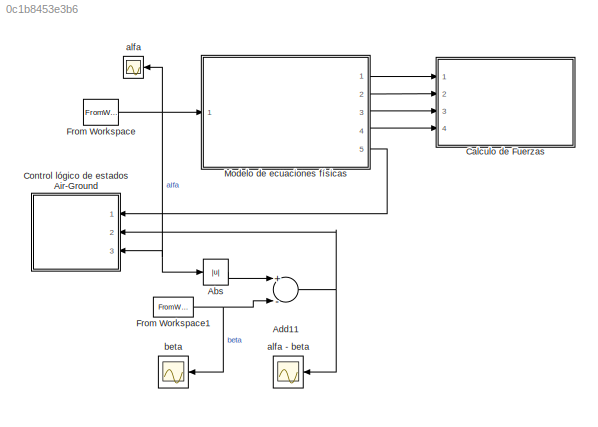
MODEL slx_0c1b8453e3b6
KIND model
CONFIG AbsTol = auto
CONFIG EnableMultiTasking = off
CONFIG FixedStep = auto
CONFIG MaxStep = auto
CONFIG MinStep = auto
CONFIG RelTol = 1e-1
CONFIG SampleTimeConstraint = Unconstrained
CONFIG Solver = ode4
CONFIG SolverName = ode4
CONFIG StartTime = 0.0
CONFIG StopTime = ta
BLOCK [Abs] Abs
  SaturateOnIntegerOverflow = off
BLOCK [Sum] Add11
  InputSameDT = off
  Inputs = +-
  OutDataTypeStr = Inherit: Inherit via internal rule
  Ports = [2, 1]
  SaturateOnIntegerOverflow = off
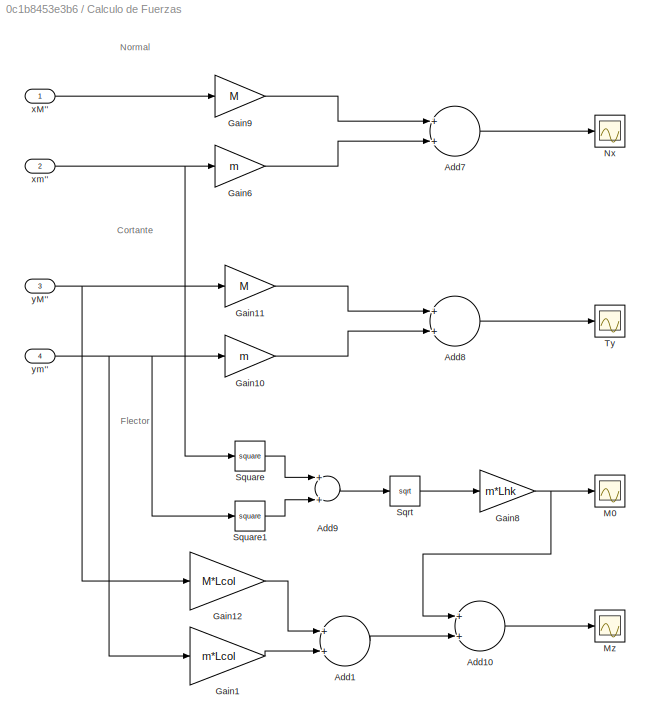
BLOCK [SubSystem] Calculo de Fuerzas
  Ports = [4]
  RequestExecContextInheritance = off
BLOCK [Sum] Calculo de Fuerzas/Add1
  InputSameDT = off
  OutDataTypeStr = Inherit: Inherit via internal rule
  Ports = [2, 1]
  SaturateOnIntegerOverflow = off
BLOCK [Sum] Calculo de Fuerzas/Add10
  InputSameDT = off
  OutDataTypeStr = Inherit: Inherit via internal rule
  Ports = [2, 1]
  SaturateOnIntegerOverflow = off
BLOCK [Sum] Calculo de Fuerzas/Add7
  InputSameDT = off
  OutDataTypeStr = Inherit: Inherit via internal rule
  Ports = [2, 1]
  SaturateOnIntegerOverflow = off
BLOCK [Sum] Calculo de Fuerzas/Add8
  InputSameDT = off
  OutDataTypeStr = Inherit: Inherit via internal rule
  Ports = [2, 1]
  SaturateOnIntegerOverflow = off
BLOCK [Sum] Calculo de Fuerzas/Add9
  InputSameDT = off
  OutDataTypeStr = Inherit: Inherit via internal rule
  Ports = [2, 1]
  SaturateOnIntegerOverflow = off
BLOCK [Gain] Calculo de Fuerzas/Gain1
  Gain = m*Lcol
  OutDataTypeStr = Inherit: Inherit via internal rule
  ParamDataTypeStr = Inherit: Inherit via internal rule
  SaturateOnIntegerOverflow = off
BLOCK [Gain] Calculo de Fuerzas/Gain10
  Gain = m
  OutDataTypeStr = Inherit: Inherit via internal rule
  ParamDataTypeStr = Inherit: Inherit via internal rule
  SaturateOnIntegerOverflow = off
BLOCK [Gain] Calculo de Fuerzas/Gain11
  Gain = M
  OutDataTypeStr = Inherit: Inherit via internal rule
  ParamDataTypeStr = Inherit: Inherit via internal rule
  SaturateOnIntegerOverflow = off
BLOCK [Gain] Calculo de Fuerzas/Gain12
  Gain = M*Lcol
  OutDataTypeStr = Inherit: Inherit via internal rule
  ParamDataTypeStr = Inherit: Inherit via internal rule
  SaturateOnIntegerOverflow = off
BLOCK [Gain] Calculo de Fuerzas/Gain6
  Gain = m
  OutDataTypeStr = Inherit: Inherit via internal rule
  ParamDataTypeStr = Inherit: Inherit via internal rule
  SaturateOnIntegerOverflow = off
BLOCK [Gain] Calculo de Fuerzas/Gain8
  Gain = m*Lhk
  OutDataTypeStr = Inherit: Inherit via internal rule
  ParamDataTypeStr = Inherit: Inherit via internal rule
  SaturateOnIntegerOverflow = off
BLOCK [Gain] Calculo de Fuerzas/Gain9
  Gain = M
  OutDataTypeStr = Inherit: Inherit via internal rule
  ParamDataTypeStr = Inherit: Inherit via internal rule
  SaturateOnIntegerOverflow = off
BLOCK [Scope] Calculo de Fuerzas/M0
  Floating = off
  NumInputPorts = 1
  Ports = [1]
  ScopeSpecificationString = Simulink.scopes.TimeScopeBlockCfg('CurrentConfiguration', extmgr.ConfigurationSet(extmgr.Configuration('Core','General UI',true),extmgr.Configuration('Core','Source UI',true),extmgr.Configuration('Sources','WiredSimulink',true,'DataLoggingVariableName','M0','DataLogging',true),extmgr.Configuration('Visuals','Time Domain',true,'SerializedDisplays',{struct('MinYLimReal','7.84642','MaxYLimReal','9.89...<+1469ch>
BLOCK [Scope] Calculo de Fuerzas/Mz
  Floating = off
  NumInputPorts = 1
  Ports = [1]
  ScopeSpecificationString = Simulink.scopes.TimeScopeBlockCfg('CurrentConfiguration', extmgr.ConfigurationSet(extmgr.Configuration('Core','General UI',true),extmgr.Configuration('Core','Source UI',true),extmgr.Configuration('Sources','WiredSimulink',true,'DataLoggingVariableName','Mz','DataLogging',true),extmgr.Configuration('Visuals','Time Domain',true,'SerializedDisplays',{struct('MinYLimReal','-95.15858','MaxYLimReal','-9...<+1480ch>
BLOCK [Scope] Calculo de Fuerzas/Nx
  Floating = off
  NumInputPorts = 1
  Ports = [1]
  ScopeSpecificationString = Simulink.scopes.TimeScopeBlockCfg('CurrentConfiguration', extmgr.ConfigurationSet(extmgr.Configuration('Core','General UI',true),extmgr.Configuration('Core','Source UI',true),extmgr.Configuration('Sources','WiredSimulink',true,'DataLoggingVariableName','Nx','DataLogging',true),extmgr.Configuration('Visuals','Time Domain',true,'SerializedDisplays',{struct('MinYLimReal','-11.64672','MaxYLimReal','1....<+1449ch>
BLOCK [Sqrt] Calculo de Fuerzas/Sqrt
BLOCK [Math] Calculo de Fuerzas/Square
  Operator = square
  Ports = [1, 1]
BLOCK [Math] Calculo de Fuerzas/Square1
  Operator = square
  Ports = [1, 1]
BLOCK [Scope] Calculo de Fuerzas/Ty
  Floating = off
  NumInputPorts = 1
  Ports = [1]
  ScopeSpecificationString = Simulink.scopes.TimeScopeBlockCfg('CurrentConfiguration', extmgr.ConfigurationSet(extmgr.Configuration('Core','General UI',true),extmgr.Configuration('Core','Source UI',true),extmgr.Configuration('Sources','WiredSimulink',true,'DataLoggingVariableName','Ty','DataLogging',true),extmgr.Configuration('Visuals','Time Domain',true,'SerializedDisplays',{struct('MinYLimReal','-180.70757','MaxYLimReal','-...<+1461ch>
BLOCK [Inport] Calculo de Fuerzas/xM''
  IconDisplay = Port number
BLOCK [Inport] Calculo de Fuerzas/xm''
  IconDisplay = Port number
  Port = 2
BLOCK [Inport] Calculo de Fuerzas/yM''
  IconDisplay = Port number
  Port = 3
BLOCK [Inport] Calculo de Fuerzas/ym''
  IconDisplay = Port number
  Port = 4
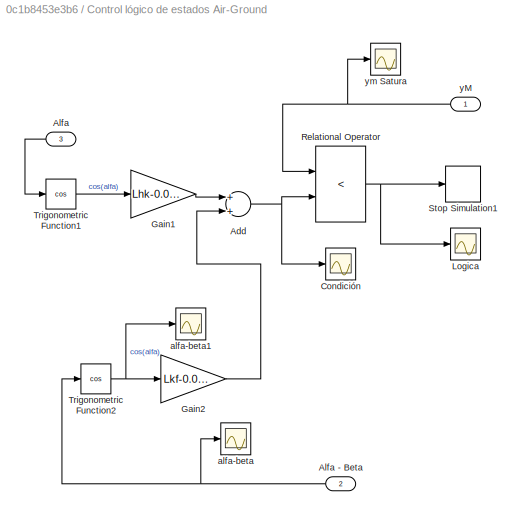
BLOCK [SubSystem] Control lógico de estados Air-Ground
  Ports = [3]
  RequestExecContextInheritance = off
BLOCK [Sum] Control lógico de estados Air-Ground/Add
  InputSameDT = off
  OutDataTypeStr = Inherit: Inherit via internal rule
  Ports = [2, 1]
  SaturateOnIntegerOverflow = off
BLOCK [Inport] Control lógico de estados Air-Ground/Alfa
  IconDisplay = Port number
  Port = 3
BLOCK [Inport] Control lógico de estados Air-Ground/Alfa - Beta
  IconDisplay = Port number
  Port = 2
BLOCK [Scope] Control lógico de estados Air-Ground/Condición
  Floating = off
  NumInputPorts = 1
  Ports = [1]
  ScopeSpecificationString = Simulink.scopes.TimeScopeBlockCfg('CurrentConfiguration', extmgr.ConfigurationSet(extmgr.Configuration('Core','General UI',true),extmgr.Configuration('Core','Source UI',true),extmgr.Configuration('Sources','WiredSimulink',true,'DataLoggingVariableName','condicion','DataLogging',true),extmgr.Configuration('Visuals','Time Domain',true,'SerializedDisplays',{struct('MinYLimReal','0.23838','MaxYLimReal...<+1473ch>
BLOCK [Gain] Control lógico de estados Air-Ground/Gain1
  Gain = Lhk-0.001
  OutDataTypeStr = Inherit: Inherit via internal rule
  ParamDataTypeStr = Inherit: Inherit via internal rule
  SaturateOnIntegerOverflow = off
BLOCK [Gain] Control lógico de estados Air-Ground/Gain2
  Gain = Lkf-0.001
  OutDataTypeStr = Inherit: Inherit via internal rule
  ParamDataTypeStr = Inherit: Inherit via internal rule
  SaturateOnIntegerOverflow = off
BLOCK [Scope] Control lógico de estados Air-Ground/Logica
  Floating = off
  NumInputPorts = 1
  Ports = [1]
  ScopeSpecificationString = Simulink.scopes.TimeScopeBlockCfg('CurrentConfiguration', extmgr.ConfigurationSet(extmgr.Configuration('Core','General UI',true),extmgr.Configuration('Core','Source UI',true),extmgr.Configuration('Sources','WiredSimulink',true,'DataLoggingVariableName','ScopeData1','DataLoggingSaveFormat','Array'),extmgr.Configuration('Visuals','Time Domain',true,'SerializedDisplays',{struct('MinYLimReal','-0.125'...<+1425ch>
BLOCK [RelationalOperator] Control lógico de estados Air-Ground/Relational Operator
  InputSameDT = off
  Operator = <
  OutDataTypeStr = boolean
  Ports = [2, 1]
  RndMeth = Simplest
BLOCK [Stop] Control lógico de estados Air-Ground/Stop Simulation1
BLOCK [Trigonometry] Control lógico de estados Air-Ground/Trigonometric Function1
  Operator = cos
  Ports = [1, 1]
BLOCK [Trigonometry] Control lógico de estados Air-Ground/Trigonometric Function2
  Operator = cos
  Ports = [1, 1]
BLOCK [Scope] Control lógico de estados Air-Ground/alfa-beta
  Floating = off
  NumInputPorts = 1
  Ports = [1]
  ScopeSpecificationString = Simulink.scopes.TimeScopeBlockCfg('CurrentConfiguration', extmgr.ConfigurationSet(extmgr.Configuration('Core','General UI',true),extmgr.Configuration('Core','Source UI',true),extmgr.Configuration('Sources','WiredSimulink',true,'DataLoggingVariableName','ScopeData2','DataLoggingSaveFormat','Array'),extmgr.Configuration('Visuals','Time Domain',true,'SerializedDisplays',{struct('MinYLimReal','-1.6956...<+1500ch>
BLOCK [Scope] Control lógico de estados Air-Ground/alfa-beta1
  Floating = off
  NumInputPorts = 1
  Ports = [1]
  ScopeSpecificationString = Simulink.scopes.TimeScopeBlockCfg('CurrentConfiguration', extmgr.ConfigurationSet(extmgr.Configuration('Core','General UI',true),extmgr.Configuration('Core','Source UI',true),extmgr.Configuration('Sources','WiredSimulink',true,'DataLoggingVariableName','ScopeData4','DataLoggingSaveFormat','Array'),extmgr.Configuration('Visuals','Time Domain',true,'SerializedDisplays',{struct('MinYLimReal','-0.1159...<+1486ch>
BLOCK [Inport] Control lógico de estados Air-Ground/yM
  IconDisplay = Port number
BLOCK [Scope] Control lógico de estados Air-Ground/ym Satura
  Floating = off
  NumInputPorts = 1
  Ports = [1]
  ScopeSpecificationString = Simulink.scopes.TimeScopeBlockCfg('CurrentConfiguration', extmgr.ConfigurationSet(extmgr.Configuration('Core','General UI',true),extmgr.Configuration('Core','Source UI',true),extmgr.Configuration('Sources','WiredSimulink',true,'DataLoggingVariableName','ymSat','DataLogging',true),extmgr.Configuration('Visuals','Time Domain',true,'SerializedDisplays',{struct('MinYLimReal','0.29969','MaxYLimReal','0...<+1470ch>
BLOCK [FromWorkspace] From Workspace
  SampleTime = 0
  VariableName = alfaAir_t
  ZeroCross = on
BLOCK [FromWorkspace] From Workspace1
  SampleTime = 0
  VariableName = betaAir_t
  ZeroCross = on
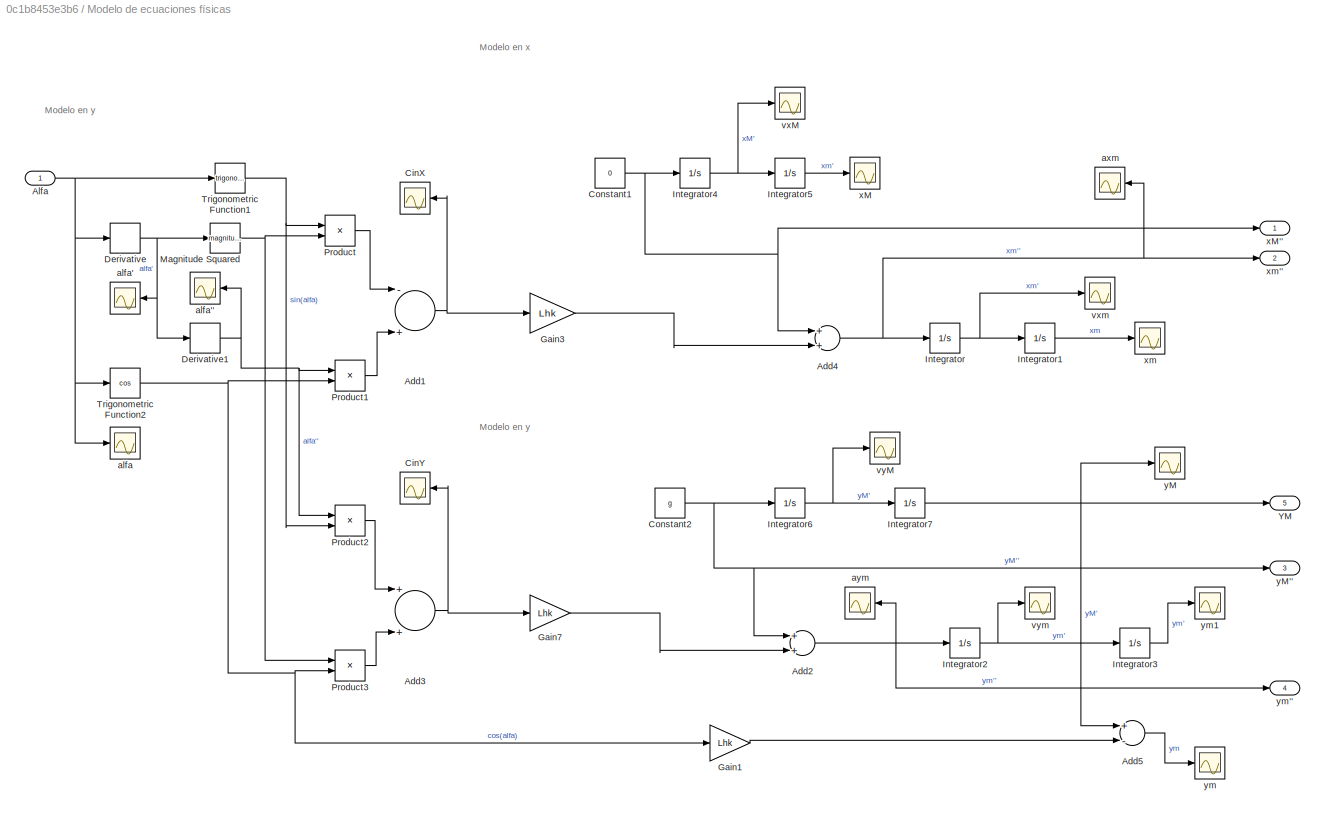
BLOCK [SubSystem] Modelo de ecuaciones físicas
  Ports = [1, 5]
  RequestExecContextInheritance = off
BLOCK [Sum] Modelo de ecuaciones físicas/Add1
  InputSameDT = off
  Inputs = -+
  OutDataTypeStr = Inherit: Inherit via internal rule
  Ports = [2, 1]
  SaturateOnIntegerOverflow = off
BLOCK [Sum] Modelo de ecuaciones físicas/Add2
  InputSameDT = off
  OutDataTypeStr = Inherit: Inherit via internal rule
  Ports = [2, 1]
  SaturateOnIntegerOverflow = off
BLOCK [Sum] Modelo de ecuaciones físicas/Add3
  InputSameDT = off
  OutDataTypeStr = Inherit: Inherit via internal rule
  Ports = [2, 1]
  SaturateOnIntegerOverflow = off
BLOCK [Sum] Modelo de ecuaciones físicas/Add4
  InputSameDT = off
  OutDataTypeStr = Inherit: Inherit via internal rule
  Ports = [2, 1]
  SaturateOnIntegerOverflow = off
BLOCK [Sum] Modelo de ecuaciones físicas/Add5
  InputSameDT = off
  Inputs = +-
  OutDataTypeStr = Inherit: Inherit via internal rule
  Ports = [2, 1]
  SaturateOnIntegerOverflow = off
BLOCK [Inport] Modelo de ecuaciones físicas/Alfa
  IconDisplay = Port number
BLOCK [Scope] Modelo de ecuaciones físicas/CinX
  Floating = off
  NumInputPorts = 1
  Ports = [1]
  ScopeSpecificationString = Simulink.scopes.TimeScopeBlockCfg('CurrentConfiguration', extmgr.ConfigurationSet(extmgr.Configuration('Core','General UI',true),extmgr.Configuration('Core','Source UI',true),extmgr.Configuration('Sources','WiredSimulink',true,'DataLoggingVariableName','ScopeData5'),extmgr.Configuration('Visuals','Time Domain',true,'SerializedDisplays',{struct('MinYLimReal','-277.41704','MaxYLimReal','317.45038','...<+1402ch>
BLOCK [Scope] Modelo de ecuaciones físicas/CinY
  Floating = off
  NumInputPorts = 1
  Ports = [1]
  ScopeSpecificationString = Simulink.scopes.TimeScopeBlockCfg('CurrentConfiguration', extmgr.ConfigurationSet(extmgr.Configuration('Core','General UI',true),extmgr.Configuration('Core','Source UI',true),extmgr.Configuration('Sources','WiredSimulink',true,'DataLoggingVariableName','ScopeData4'),extmgr.Configuration('Visuals','Time Domain',true,'SerializedDisplays',{struct('MinYLimReal','-1319.62128','MaxYLimReal','1425.50096'...<+1385ch>
BLOCK [Constant] Modelo de ecuaciones físicas/Constant1
  Value = 0
BLOCK [Constant] Modelo de ecuaciones físicas/Constant2
  Value = g
BLOCK [Derivative] Modelo de ecuaciones físicas/Derivative
  CoefficientInTFapproximation = 10000
BLOCK [Derivative] Modelo de ecuaciones físicas/Derivative1
  CoefficientInTFapproximation = 10000
BLOCK [Gain] Modelo de ecuaciones físicas/Gain1
  Gain = Lhk
  OutDataTypeStr = Inherit: Inherit via internal rule
  ParamDataTypeStr = Inherit: Inherit via internal rule
  SaturateOnIntegerOverflow = off
BLOCK [Gain] Modelo de ecuaciones físicas/Gain3
  Gain = Lhk
  OutDataTypeStr = Inherit: Inherit via internal rule
  ParamDataTypeStr = Inherit: Inherit via internal rule
  SaturateOnIntegerOverflow = off
BLOCK [Gain] Modelo de ecuaciones físicas/Gain7
  Gain = Lhk
  OutDataTypeStr = Inherit: Inherit via internal rule
  ParamDataTypeStr = Inherit: Inherit via internal rule
  SaturateOnIntegerOverflow = off
BLOCK [Integrator] Modelo de ecuaciones físicas/Integrator
  InitialCondition = vxfinal
  Ports = [1, 1]
BLOCK [Integrator] Modelo de ecuaciones físicas/Integrator1
  InitialCondition = xfinal
  Ports = [1, 1]
BLOCK [Integrator] Modelo de ecuaciones físicas/Integrator2
  InitialCondition = vyfinal
  Ports = [1, 1]
BLOCK [Integrator] Modelo de ecuaciones físicas/Integrator3
  InitialCondition = yfinal
  Ports = [1, 1]
BLOCK [Integrator] Modelo de ecuaciones físicas/Integrator4
  InitialCondition = vxMfinal
  Ports = [1, 1]
BLOCK [Integrator] Modelo de ecuaciones físicas/Integrator5
  InitialCondition = xMfinal
  Ports = [1, 1]
BLOCK [Integrator] Modelo de ecuaciones físicas/Integrator6
  InitialCondition = vyMfinal
  Ports = [1, 1]
BLOCK [Integrator] Modelo de ecuaciones físicas/Integrator7
  InitialCondition = yMfinal
  Ports = [1, 1]
BLOCK [Math] Modelo de ecuaciones físicas/Magnitude Squared
  Operator = magnitude^2
  Ports = [1, 1]
BLOCK [Product] Modelo de ecuaciones físicas/Product
  InputSameDT = off
  OutDataTypeStr = Inherit: Inherit via internal rule
  Ports = [2, 1]
  RndMeth = Floor
  SaturateOnIntegerOverflow = off
BLOCK [Product] Modelo de ecuaciones físicas/Product1
  InputSameDT = off
  OutDataTypeStr = Inherit: Inherit via internal rule
  Ports = [2, 1]
  RndMeth = Floor
  SaturateOnIntegerOverflow = off
BLOCK [Product] Modelo de ecuaciones físicas/Product2
  InputSameDT = off
  OutDataTypeStr = Inherit: Inherit via internal rule
  Ports = [2, 1]
  RndMeth = Floor
  SaturateOnIntegerOverflow = off
BLOCK [Product] Modelo de ecuaciones físicas/Product3
  InputSameDT = off
  OutDataTypeStr = Inherit: Inherit via internal rule
  Ports = [2, 1]
  RndMeth = Floor
  SaturateOnIntegerOverflow = off
BLOCK [Trigonometry] Modelo de ecuaciones físicas/Trigonometric Function1
  Ports = [1, 1]
BLOCK [Trigonometry] Modelo de ecuaciones físicas/Trigonometric Function2
  Operator = cos
  Ports = [1, 1]
BLOCK [Outport] Modelo de ecuaciones físicas/YM
  IconDisplay = Port number
  Port = 5
BLOCK [Scope] Modelo de ecuaciones físicas/alfa
  Floating = off
  NumInputPorts = 1
  Ports = [1]
  ScopeSpecificationString = Simulink.scopes.TimeScopeBlockCfg('CurrentConfiguration', extmgr.ConfigurationSet(extmgr.Configuration('Core','General UI',true),extmgr.Configuration('Core','Source UI',true),extmgr.Configuration('Sources','WiredSimulink',true,'DataLoggingVariableName','ScopeData1'),extmgr.Configuration('Visuals','Time Domain',true,'SerializedDisplays',{struct('MinYLimReal','-0.93989','MaxYLimReal','-0.61374','YLa...<+1417ch>
BLOCK [Scope] Modelo de ecuaciones físicas/alfa'
  Floating = off
  NumInputPorts = 1
  Ports = [1]
  ScopeSpecificationString = Simulink.scopes.TimeScopeBlockCfg('CurrentConfiguration', extmgr.ConfigurationSet(extmgr.Configuration('Core','General UI',true),extmgr.Configuration('Core','Source UI',true),extmgr.Configuration('Sources','WiredSimulink',true,'DataLoggingVariableName','valfaReal','DataLogging',true),extmgr.Configuration('Visuals','Time Domain',true,'SerializedDisplays',{struct('MinYLimReal','-1.60255','MaxYLimRea...<+1435ch>
BLOCK [Scope] Modelo de ecuaciones físicas/alfa''
  Floating = off
  NumInputPorts = 1
  Ports = [1]
  ScopeSpecificationString = Simulink.scopes.TimeScopeBlockCfg('CurrentConfiguration', extmgr.ConfigurationSet(extmgr.Configuration('Core','General UI',true),extmgr.Configuration('Core','Source UI',true),extmgr.Configuration('Sources','WiredSimulink',true,'DataLoggingVariableName','aAlfaReal','DataLogging',true),extmgr.Configuration('Visuals','Time Domain',true,'SerializedDisplays',{struct('MinYLimReal','-14.66857','MaxYLimRe...<+1460ch>
BLOCK [Scope] Modelo de ecuaciones físicas/axm
  Floating = off
  NumInputPorts = 1
  Ports = [1]
  ScopeSpecificationString = Simulink.scopes.TimeScopeBlockCfg('CurrentConfiguration', extmgr.ConfigurationSet(extmgr.Configuration('Core','General UI',true),extmgr.Configuration('Core','Source UI',true),extmgr.Configuration('Sources','WiredSimulink',true,'DataLoggingVariableName','ScopeData1'),extmgr.Configuration('Visuals','Time Domain',true,'SerializedDisplays',{struct('MinYLimReal','-1300094883330443.25','MaxYLimReal','14...<+1492ch>
BLOCK [Scope] Modelo de ecuaciones físicas/aym
  Floating = off
  NumInputPorts = 1
  Ports = [1]
  ScopeSpecificationString = Simulink.scopes.TimeScopeBlockCfg('CurrentConfiguration', extmgr.ConfigurationSet(extmgr.Configuration('Core','General UI',true),extmgr.Configuration('Core','Source UI',true),extmgr.Configuration('Sources','WiredSimulink',true,'DataLoggingVariableName','ScopeData1'),extmgr.Configuration('Visuals','Time Domain',true,'SerializedDisplays',{struct('MinYLimReal','-379.30396','MaxYLimReal','389.33027','...<+1404ch>
BLOCK [Scope] Modelo de ecuaciones físicas/vxM
  Floating = off
  NumInputPorts = 1
  Ports = [1]
  ScopeSpecificationString = Simulink.scopes.TimeScopeBlockCfg('CurrentConfiguration', extmgr.ConfigurationSet(extmgr.Configuration('Core','General UI',true),extmgr.Configuration('Core','Source UI',true),extmgr.Configuration('Sources','WiredSimulink',true,'DataLogging',true,'DataLoggingVariableName','vxMair'),extmgr.Configuration('Visuals','Time Domain',true,'SerializedDisplays',{struct('MinYLimReal','-3.97749','MaxYLimReal',...<+1405ch>
BLOCK [Scope] Modelo de ecuaciones físicas/vxm
  Floating = off
  NumInputPorts = 1
  Ports = [1]
  ScopeSpecificationString = Simulink.scopes.TimeScopeBlockCfg('CurrentConfiguration', extmgr.ConfigurationSet(extmgr.Configuration('Core','General UI',true),extmgr.Configuration('Core','Source UI',true),extmgr.Configuration('Sources','WiredSimulink',true,'DataLoggingVariableName','vxair','DataLogging',true),extmgr.Configuration('Visuals','Time Domain',true,'SerializedDisplays',{struct('MinYLimReal','-2.60691','MaxYLimReal','...<+1404ch>
BLOCK [Scope] Modelo de ecuaciones físicas/vyM
  Floating = off
  NumInputPorts = 1
  Ports = [1]
  ScopeSpecificationString = Simulink.scopes.TimeScopeBlockCfg('CurrentConfiguration', extmgr.ConfigurationSet(extmgr.Configuration('Core','General UI',true),extmgr.Configuration('Core','Source UI',true),extmgr.Configuration('Sources','WiredSimulink',true,'DataLogging',true,'DataLoggingVariableName','vyMair'),extmgr.Configuration('Visuals','Time Domain',true,'SerializedDisplays',{struct('MinYLimReal','-1.00000','MaxYLimReal',...<+1374ch>
BLOCK [Scope] Modelo de ecuaciones físicas/vym
  Floating = off
  NumInputPorts = 1
  Ports = [1]
  ScopeSpecificationString = Simulink.scopes.TimeScopeBlockCfg('CurrentConfiguration', extmgr.ConfigurationSet(extmgr.Configuration('Core','General UI',true),extmgr.Configuration('Core','Source UI',true),extmgr.Configuration('Sources','WiredSimulink',true,'DataLoggingVariableName','vyair','DataLogging',true),extmgr.Configuration('Visuals','Time Domain',true,'SerializedDisplays',{struct('MinYLimReal','-2.0288','MaxYLimReal','2...<+1421ch>
BLOCK [Scope] Modelo de ecuaciones físicas/xM
  Floating = off
  NumInputPorts = 1
  Ports = [1]
  ScopeSpecificationString = Simulink.scopes.TimeScopeBlockCfg('CurrentConfiguration', extmgr.ConfigurationSet(extmgr.Configuration('Core','General UI',true),extmgr.Configuration('Core','Source UI',true),extmgr.Configuration('Sources','WiredSimulink',true,'DataLogging',true,'DataLoggingVariableName','xMair'),extmgr.Configuration('Visuals','Time Domain',true,'SerializedDisplays',{struct('MinYLimReal','-1.00000','MaxYLimReal','...<+1373ch>
BLOCK [Outport] Modelo de ecuaciones físicas/xM''
  IconDisplay = Port number
BLOCK [Scope] Modelo de ecuaciones físicas/xm
  Floating = off
  NumInputPorts = 1
  Ports = [1]
  ScopeSpecificationString = Simulink.scopes.TimeScopeBlockCfg('CurrentConfiguration', extmgr.ConfigurationSet(extmgr.Configuration('Core','General UI',true),extmgr.Configuration('Core','Source UI',true),extmgr.Configuration('Sources','WiredSimulink',true,'DataLogging',true,'DataLoggingVariableName','xair'),extmgr.Configuration('Visuals','Time Domain',true,'SerializedDisplays',{struct('MinYLimReal','-1.00000','MaxYLimReal','1...<+1372ch>
BLOCK [Outport] Modelo de ecuaciones físicas/xm''
  IconDisplay = Port number
  Port = 2
BLOCK [Scope] Modelo de ecuaciones físicas/yM
  Floating = off
  NumInputPorts = 1
  Ports = [1]
  ScopeSpecificationString = Simulink.scopes.TimeScopeBlockCfg('CurrentConfiguration', extmgr.ConfigurationSet(extmgr.Configuration('Core','General UI',true),extmgr.Configuration('Core','Source UI',true),extmgr.Configuration('Sources','WiredSimulink',true,'DataLogging',true,'DataLoggingVariableName','yMair'),extmgr.Configuration('Visuals','Time Domain',true,'SerializedDisplays',{struct('MinYLimReal','0.73865','MaxYLimReal','0...<+2100ch>
BLOCK [Outport] Modelo de ecuaciones físicas/yM''
  IconDisplay = Port number
  Port = 3
BLOCK [Scope] Modelo de ecuaciones físicas/ym
  Floating = off
  NumInputPorts = 1
  Ports = [1]
  ScopeSpecificationString = Simulink.scopes.TimeScopeBlockCfg('CurrentConfiguration', extmgr.ConfigurationSet(extmgr.Configuration('Core','General UI',true),extmgr.Configuration('Core','Source UI',true),extmgr.Configuration('Sources','WiredSimulink',true,'DataLogging',true,'DataLoggingVariableName','yair'),extmgr.Configuration('Visuals','Time Domain',true,'SerializedDisplays',{struct('MinYLimReal','0.15335','MaxYLimReal','0....<+1399ch>
BLOCK [Outport] Modelo de ecuaciones físicas/ym''
  IconDisplay = Port number
  Port = 4
BLOCK [Scope] Modelo de ecuaciones físicas/ym1
  Floating = off
  NumInputPorts = 1
  Ports = [1]
  ScopeSpecificationString = Simulink.scopes.TimeScopeBlockCfg('CurrentConfiguration', extmgr.ConfigurationSet(extmgr.Configuration('Core','General UI',true),extmgr.Configuration('Core','Source UI',true),extmgr.Configuration('Sources','WiredSimulink',true,'DataLogging',true,'DataLoggingVariableName','yairAlter'),extmgr.Configuration('Visuals','Time Domain',true,'SerializedDisplays',{struct('MinYLimReal','-0.55455','MaxYLimRea...<+1408ch>
BLOCK [Scope] alfa
  Floating = off
  NumInputPorts = 1
  Ports = [1]
  ScopeSpecificationString = Simulink.scopes.TimeScopeBlockCfg('CurrentConfiguration', extmgr.ConfigurationSet(extmgr.Configuration('Core','General UI',true),extmgr.Configuration('Core','Source UI',true),extmgr.Configuration('Sources','WiredSimulink',true,'DataLoggingVariableName','alfaAirReal','DataLogging',true),extmgr.Configuration('Visuals','Time Domain',true,'SerializedDisplays',{struct('MinYLimReal','-0.93989','MaxYLimR...<+1410ch>
BLOCK [Scope] alfa - beta
  Floating = off
  NumInputPorts = 1
  Ports = [1]
  ScopeSpecificationString = Simulink.scopes.TimeScopeBlockCfg('CurrentConfiguration', extmgr.ConfigurationSet(extmgr.Configuration('Core','General UI',true),extmgr.Configuration('Core','Source UI',true),extmgr.Configuration('Sources','WiredSimulink',true,'DataLoggingVariableName','ScopeData2'),extmgr.Configuration('Visuals','Time Domain',true,'SerializedDisplays',{struct('MinYLimReal','-1.34474','MaxYLimReal','1.20192','YLab...<+1389ch>
BLOCK [Scope] beta
  Floating = off
  NumInputPorts = 1
  Ports = [1]
  ScopeSpecificationString = Simulink.scopes.TimeScopeBlockCfg('CurrentConfiguration', extmgr.ConfigurationSet(extmgr.Configuration('Core','General UI',true),extmgr.Configuration('Core','Source UI',true),extmgr.Configuration('Sources','WiredSimulink',true,'DataLoggingVariableName','betaAirReal','DataLogging',true),extmgr.Configuration('Visuals','Time Domain',true,'SerializedDisplays',{struct('MinYLimReal','-0.01821','MaxYLimR...<+1383ch>
ANNOTATION Calculo de Fuerzas: Cortante
ANNOTATION Calculo de Fuerzas: Flector
ANNOTATION Calculo de Fuerzas: Normal
ANNOTATION Modelo de ecuaciones físicas: Modelo en x
ANNOTATION Modelo de ecuaciones físicas: Modelo en y
LINE Abs:1 -> Add11:1
NET Add11:1 -> Control lógico de estados Air-Ground:2, alfa - beta:1
LINE Calculo de Fuerzas/Add10:1 -> Calculo de Fuerzas/Mz:1
LINE Calculo de Fuerzas/Add1:1 -> Calculo de Fuerzas/Add10:2
LINE Calculo de Fuerzas/Add7:1 -> Calculo de Fuerzas/Nx:1
LINE Calculo de Fuerzas/Add8:1 -> Calculo de Fuerzas/Ty:1
LINE Calculo de Fuerzas/Add9:1 -> Calculo de Fuerzas/Sqrt:1
LINE Calculo de Fuerzas/Gain10:1 -> Calculo de Fuerzas/Add8:2
LINE Calculo de Fuerzas/Gain11:1 -> Calculo de Fuerzas/Add8:1
LINE Calculo de Fuerzas/Gain12:1 -> Calculo de Fuerzas/Add1:1
LINE Calculo de Fuerzas/Gain1:1 -> Calculo de Fuerzas/Add1:2
LINE Calculo de Fuerzas/Gain6:1 -> Calculo de Fuerzas/Add7:2
NET Calculo de Fuerzas/Gain8:1 -> Calculo de Fuerzas/Add10:1, Calculo de Fuerzas/M0:1
LINE Calculo de Fuerzas/Gain9:1 -> Calculo de Fuerzas/Add7:1
LINE Calculo de Fuerzas/Sqrt:1 -> Calculo de Fuerzas/Gain8:1
LINE Calculo de Fuerzas/Square1:1 -> Calculo de Fuerzas/Add9:2
LINE Calculo de Fuerzas/Square:1 -> Calculo de Fuerzas/Add9:1
LINE Calculo de Fuerzas/xM'':1 -> Calculo de Fuerzas/Gain9:1
NET Calculo de Fuerzas/xm'':1 -> Calculo de Fuerzas/Gain6:1, Calculo de Fuerzas/Square:1
NET Calculo de Fuerzas/yM'':1 -> Calculo de Fuerzas/Gain11:1, Calculo de Fuerzas/Gain12:1
NET Calculo de Fuerzas/ym'':1 -> Calculo de Fuerzas/Gain10:1, Calculo de Fuerzas/Gain1:1, Calculo de Fuerzas/Square1:1
NET Control lógico de estados Air-Ground/Add:1 -> Control lógico de estados Air-Ground/Condición:1, Control lógico de estados Air-Ground/Relational Operator:2
NET Control lógico de estados Air-Ground/Alfa - Beta:1 -> Control lógico de estados Air-Ground/Trigonometric Function2:1, Control lógico de estados Air-Ground/alfa-beta:1
LINE Control lógico de estados Air-Ground/Alfa:1 -> Control lógico de estados Air-Ground/Trigonometric Function1:1
LINE Control lógico de estados Air-Ground/Gain1:1 -> Control lógico de estados Air-Ground/Add:1
LINE Control lógico de estados Air-Ground/Gain2:1 -> Control lógico de estados Air-Ground/Add:2
NET Control lógico de estados Air-Ground/Relational Operator:1 -> Control lógico de estados Air-Ground/Logica:1, Control lógico de estados Air-Ground/Stop Simulation1:1
LINE Control lógico de estados Air-Ground/Trigonometric Function1:1 -> Control lógico de estados Air-Ground/Gain1:1
NET Control lógico de estados Air-Ground/Trigonometric Function2:1 -> Control lógico de estados Air-Ground/Gain2:1, Control lógico de estados Air-Ground/alfa-beta1:1
NET Control lógico de estados Air-Ground/yM:1 -> Control lógico de estados Air-Ground/Relational Operator:1, Control lógico de estados Air-Ground/ym Satura:1
NET From Workspace1:1 -> Add11:2, beta:1
NET From Workspace:1 -> Abs:1, Control lógico de estados Air-Ground:3, Modelo de ecuaciones físicas:1, alfa:1
NET Modelo de ecuaciones físicas/Add1:1 -> Modelo de ecuaciones físicas/CinX:1, Modelo de ecuaciones físicas/Gain3:1
NET Modelo de ecuaciones físicas/Add2:1 -> Modelo de ecuaciones físicas/Integrator2:1, Modelo de ecuaciones físicas/aym:1, Modelo de ecuaciones físicas/ym'':1
NET Modelo de ecuaciones físicas/Add3:1 -> Modelo de ecuaciones físicas/CinY:1, Modelo de ecuaciones físicas/Gain7:1
NET Modelo de ecuaciones físicas/Add4:1 -> Modelo de ecuaciones físicas/Integrator:1, Modelo de ecuaciones físicas/axm:1, Modelo de ecuaciones físicas/xm'':1
LINE Modelo de ecuaciones físicas/Add5:1 -> Modelo de ecuaciones físicas/ym:1
NET Modelo de ecuaciones físicas/Alfa:1 -> Modelo de ecuaciones físicas/Derivative:1, Modelo de ecuaciones físicas/Trigonometric Function1:1, Modelo de ecuaciones físicas/Trigonometric Function2:1, Modelo de ecuaciones físicas/alfa:1
NET Modelo de ecuaciones físicas/Constant1:1 -> Modelo de ecuaciones físicas/Add4:1, Modelo de ecuaciones físicas/Integrator4:1, Modelo de ecuaciones físicas/xM'':1
NET Modelo de ecuaciones físicas/Constant2:1 -> Modelo de ecuaciones físicas/Add2:1, Modelo de ecuaciones físicas/Integrator6:1, Modelo de ecuaciones físicas/yM'':1
NET Modelo de ecuaciones físicas/Derivative1:1 -> Modelo de ecuaciones físicas/Product1:1, Modelo de ecuaciones físicas/Product2:1, Modelo de ecuaciones físicas/alfa'':1
NET Modelo de ecuaciones físicas/Derivative:1 -> Modelo de ecuaciones físicas/Derivative1:1, Modelo de ecuaciones físicas/Magnitude Squared:1, Modelo de ecuaciones físicas/alfa':1
LINE Modelo de ecuaciones físicas/Gain1:1 -> Modelo de ecuaciones físicas/Add5:2
LINE Modelo de ecuaciones físicas/Gain3:1 -> Modelo de ecuaciones físicas/Add4:2
LINE Modelo de ecuaciones físicas/Gain7:1 -> Modelo de ecuaciones físicas/Add2:2
LINE Modelo de ecuaciones físicas/Integrator1:1 -> Modelo de ecuaciones físicas/xm:1
NET Modelo de ecuaciones físicas/Integrator2:1 -> Modelo de ecuaciones físicas/Integrator3:1, Modelo de ecuaciones físicas/vym:1
LINE Modelo de ecuaciones físicas/Integrator3:1 -> Modelo de ecuaciones físicas/ym1:1
NET Modelo de ecuaciones físicas/Integrator4:1 -> Modelo de ecuaciones físicas/Integrator5:1, Modelo de ecuaciones físicas/vxM:1
LINE Modelo de ecuaciones físicas/Integrator5:1 -> Modelo de ecuaciones físicas/xM:1
NET Modelo de ecuaciones físicas/Integrator6:1 -> Modelo de ecuaciones físicas/Integrator7:1, Modelo de ecuaciones físicas/vyM:1
NET Modelo de ecuaciones físicas/Integrator7:1 -> Modelo de ecuaciones físicas/Add5:1, Modelo de ecuaciones físicas/YM:1, Modelo de ecuaciones físicas/yM:1
NET Modelo de ecuaciones físicas/Integrator:1 -> Modelo de ecuaciones físicas/Integrator1:1, Modelo de ecuaciones físicas/vxm:1
NET Modelo de ecuaciones físicas/Magnitude Squared:1 -> Modelo de ecuaciones físicas/Product3:1, Modelo de ecuaciones físicas/Product:2
LINE Modelo de ecuaciones físicas/Product1:1 -> Modelo de ecuaciones físicas/Add1:2
LINE Modelo de ecuaciones físicas/Product2:1 -> Modelo de ecuaciones físicas/Add3:1
LINE Modelo de ecuaciones físicas/Product3:1 -> Modelo de ecuaciones físicas/Add3:2
LINE Modelo de ecuaciones físicas/Product:1 -> Modelo de ecuaciones físicas/Add1:1
NET Modelo de ecuaciones físicas/Trigonometric Function1:1 -> Modelo de ecuaciones físicas/Product2:2, Modelo de ecuaciones físicas/Product:1
NET Modelo de ecuaciones físicas/Trigonometric Function2:1 -> Modelo de ecuaciones físicas/Gain1:1, Modelo de ecuaciones físicas/Product1:2, Modelo de ecuaciones físicas/Product3:2
LINE Modelo de ecuaciones físicas:1 -> Calculo de Fuerzas:1
LINE Modelo de ecuaciones físicas:2 -> Calculo de Fuerzas:2
LINE Modelo de ecuaciones físicas:3 -> Calculo de Fuerzas:3
LINE Modelo de ecuaciones físicas:4 -> Calculo de Fuerzas:4
LINE Modelo de ecuaciones físicas:5 -> Control lógico de estados Air-Ground:1
note: NET lines group one-source signal fan-out (src -> all destinations, sorted); 1:1 wires keep LINE
